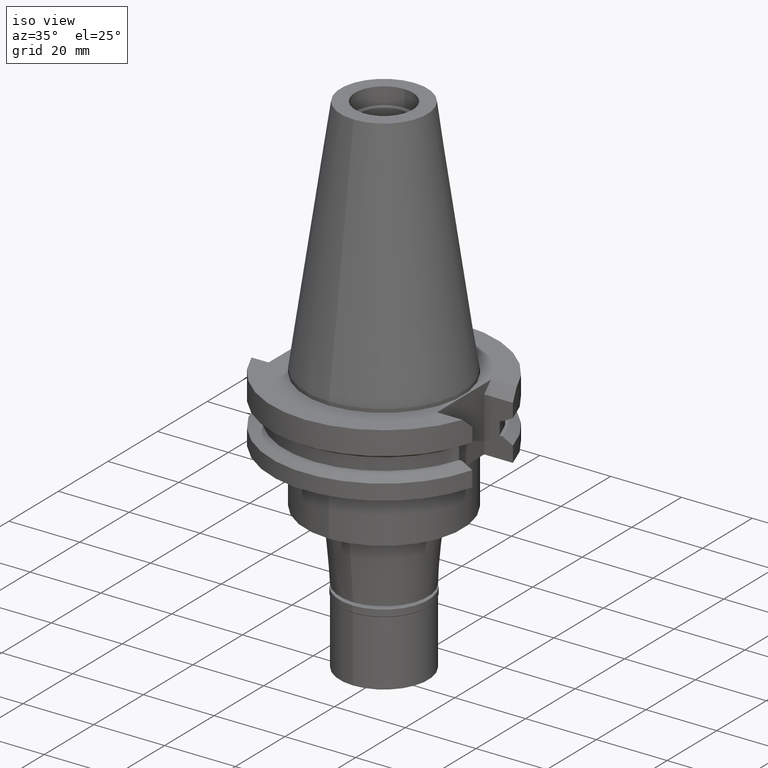
[diagram: clean part render]
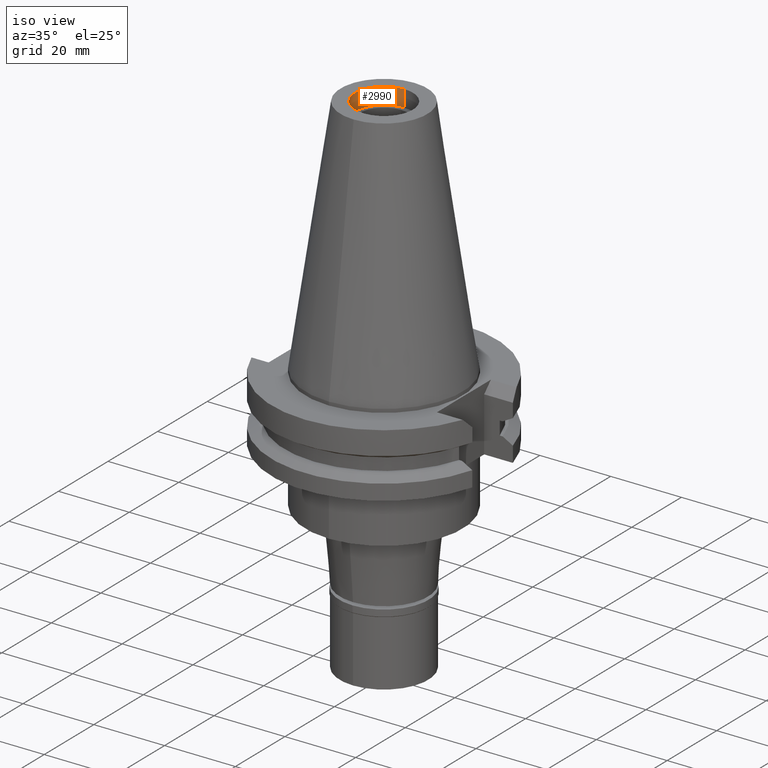
[diagram: same view with one face highlighted and labeled with its STEP entity id]
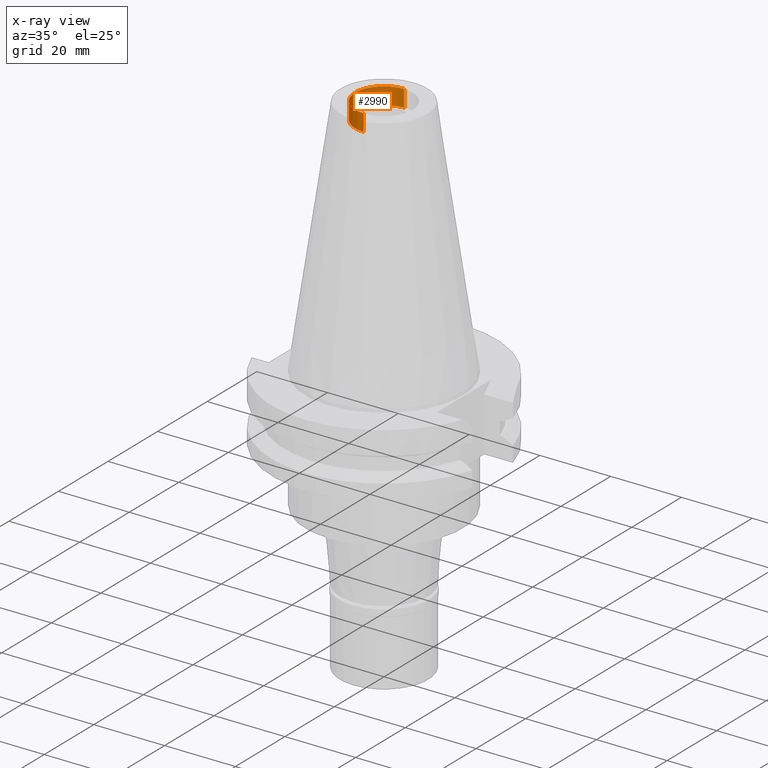
[diagram: x-ray of the same camera — body ghosted, the highlighted face saturated]
A machine part, iso view. The second image highlights one B-rep face of the part: STEP entity #2990.
The next image is the same camera in x-ray: the body ghosted, the highlighted face saturated — about 0% of this face is hidden behind the body in this view.
In plain terms, the highlighted cylindrical surface (edge-blend (fillet) strip) has radius 8.16 mm, axis along (0, 0, -1).
Its self-contained STEP definition (entity closure, byte-faithful):
#153 = VERTEX_POINT ( 'NONE', #2904 ) ;
#222 = CARTESIAN_POINT ( 'NONE',  ( 0.0000000000000000000, -8.160000000000000142, 63.46999999999999886 ) ) ;
#316 = EDGE_CURVE ( 'NONE', #153, #1279, #957, .T. ) ;
#465 = CARTESIAN_POINT ( 'NONE',  ( 0.0000000000000000000, 2.145121949555999817E-14, 75.16249999999999432 ) ) ;
#474 = AXIS2_PLACEMENT_3D ( 'NONE', #2708, #2376, #3221 ) ;
#478 = LINE ( 'NONE', #724, #1282 ) ;
#560 = CARTESIAN_POINT ( 'NONE',  ( 0.0000000000000000000, -8.160000000000000142, 68.25000000000000000 ) ) ;
#724 = CARTESIAN_POINT ( 'NONE',  ( 0.0000000000000000000, -8.160000000000000142, 63.46999999999999886 ) ) ;
#748 = DIRECTION ( 'NONE',  ( 0.0000000000000000000, -1.000000000000000000, 0.0000000000000000000 ) ) ;
#823 = DIRECTION ( 'NONE',  ( 0.0000000000000000000, 1.000000000000000000, 0.0000000000000000000 ) ) ;
#875 = EDGE_CURVE ( 'NONE', #1307, #153, #1080, .T. ) ;
#943 = DIRECTION ( 'NONE',  ( 0.0000000000000000000, 0.0000000000000000000, -1.000000000000000000 ) ) ;
#957 = CIRCLE ( 'NONE', #1349, 8.160000000000000142 ) ;
#1080 = LINE ( 'NONE', #2123, #1151 ) ;
#1151 = VECTOR ( 'NONE', #1350, 1000.000000000000000 ) ;
#1217 = EDGE_CURVE ( 'NONE', #2495, #1307, #1496, .T. ) ;
#1274 = ORIENTED_EDGE ( 'NONE', *, *, #1948, .F. ) ;
#1279 = VERTEX_POINT ( 'NONE', #560 ) ;
#1282 = VECTOR ( 'NONE', #3283, 1000.000000000000000 ) ;
#1307 = VERTEX_POINT ( 'NONE', #2339 ) ;
#1349 = AXIS2_PLACEMENT_3D ( 'NONE', #2283, #1358, #823 ) ;
#1350 = DIRECTION ( 'NONE',  ( 0.0000000000000000000, 0.0000000000000000000, 1.000000000000000000 ) ) ;
#1358 = DIRECTION ( 'NONE',  ( 0.0000000000000000000, 0.0000000000000000000, 1.000000000000000000 ) ) ;
#1496 = CIRCLE ( 'NONE', #474, 8.160000000000000142 ) ;
#1837 = ORIENTED_EDGE ( 'NONE', *, *, #875, .T. ) ;
#1948 = EDGE_CURVE ( 'NONE', #2495, #1279, #478, .T. ) ;
#2123 = CARTESIAN_POINT ( 'NONE',  ( 0.0000000000000000000, 8.160000000000000142, 63.46999999999999886 ) ) ;
#2283 = CARTESIAN_POINT ( 'NONE',  ( 0.0000000000000000000, 2.145121949555999817E-14, 68.25000000000000000 ) ) ;
#2339 = CARTESIAN_POINT ( 'NONE',  ( 0.0000000000000000000, 8.160000000000000142, 63.46999999999999886 ) ) ;
#2376 = DIRECTION ( 'NONE',  ( 0.0000000000000000000, 0.0000000000000000000, -1.000000000000000000 ) ) ;
#2495 = VERTEX_POINT ( 'NONE', #222 ) ;
#2518 = ORIENTED_EDGE ( 'NONE', *, *, #1217, .T. ) ;
#2669 = ORIENTED_EDGE ( 'NONE', *, *, #316, .T. ) ;
#2708 = CARTESIAN_POINT ( 'NONE',  ( 0.0000000000000000000, 2.145121949555999817E-14, 63.46999999999999886 ) ) ;
#2904 = CARTESIAN_POINT ( 'NONE',  ( 0.0000000000000000000, 8.160000000000000142, 68.25000000000000000 ) ) ;
#2933 = EDGE_LOOP ( 'NONE', ( #2669, #1274, #2518, #1837 ) ) ;
#2990 = ADVANCED_FACE ( 'NONE', ( #3290 ), #3318, .F. ) ;
#3080 = AXIS2_PLACEMENT_3D ( 'NONE', #465, #943, #748 ) ;
#3221 = DIRECTION ( 'NONE',  ( 0.0000000000000000000, -1.000000000000000000, 0.0000000000000000000 ) ) ;
#3283 = DIRECTION ( 'NONE',  ( 0.0000000000000000000, 0.0000000000000000000, 1.000000000000000000 ) ) ;
#3290 = FACE_OUTER_BOUND ( 'NONE', #2933, .T. ) ;
#3318 = CYLINDRICAL_SURFACE ( 'NONE', #3080, 8.160000000000000142 ) ;